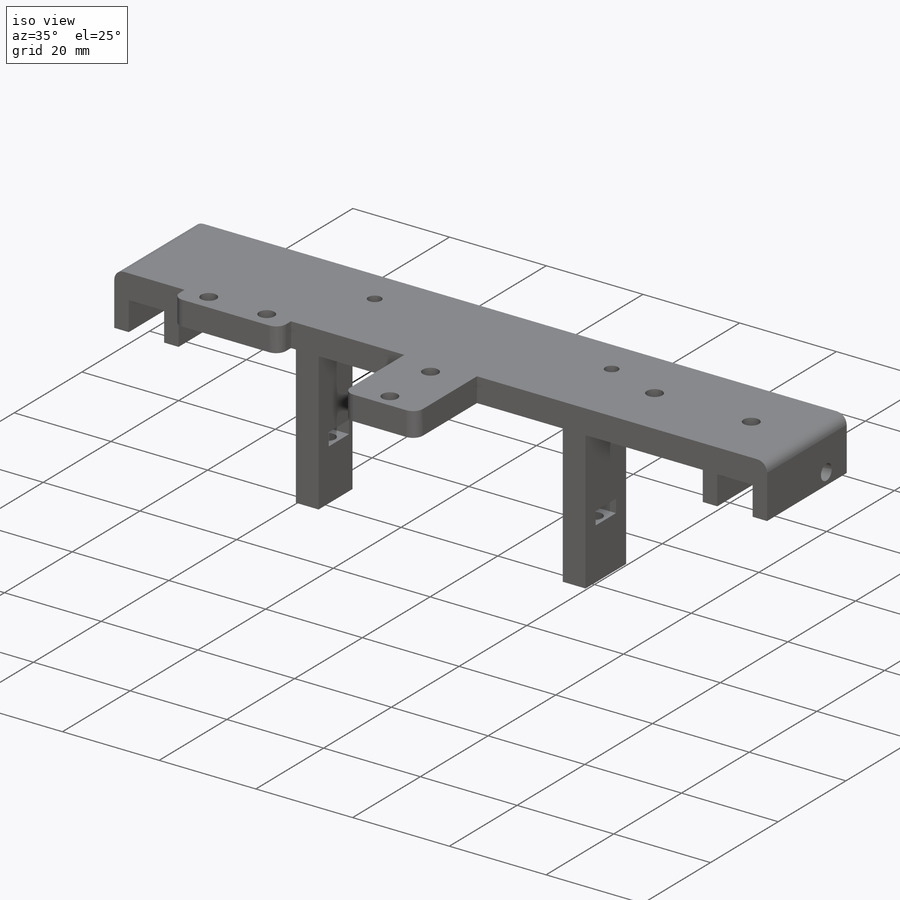
[diagram: iso view]
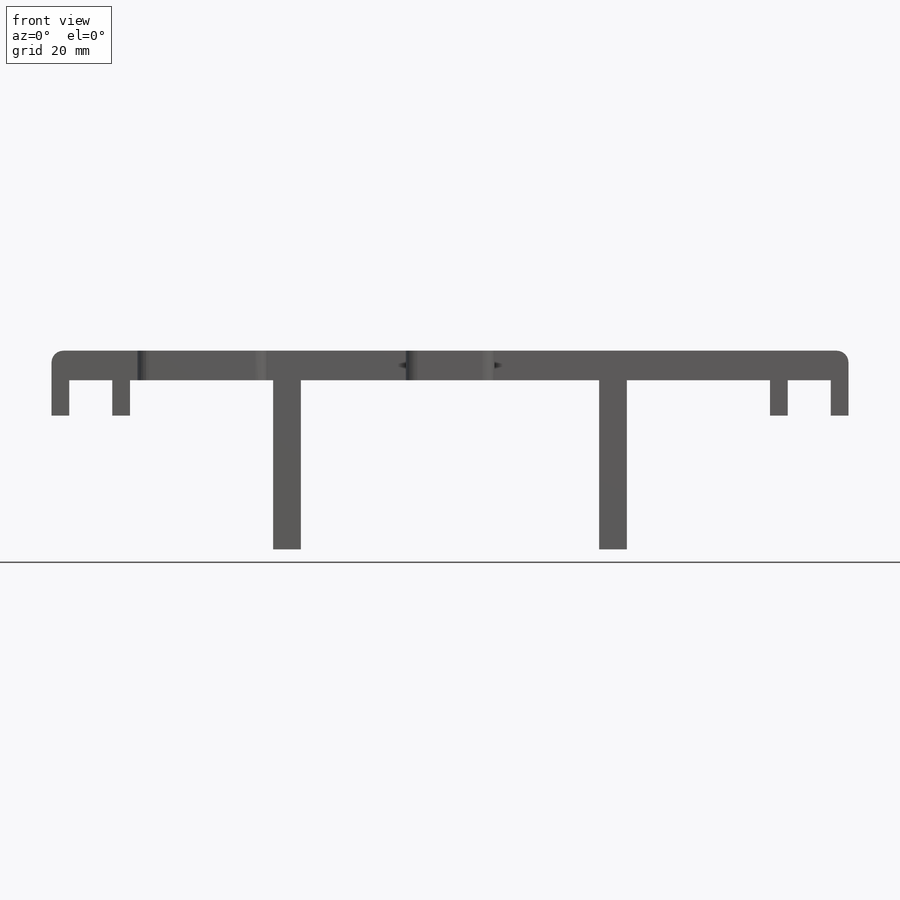
[diagram: front view]
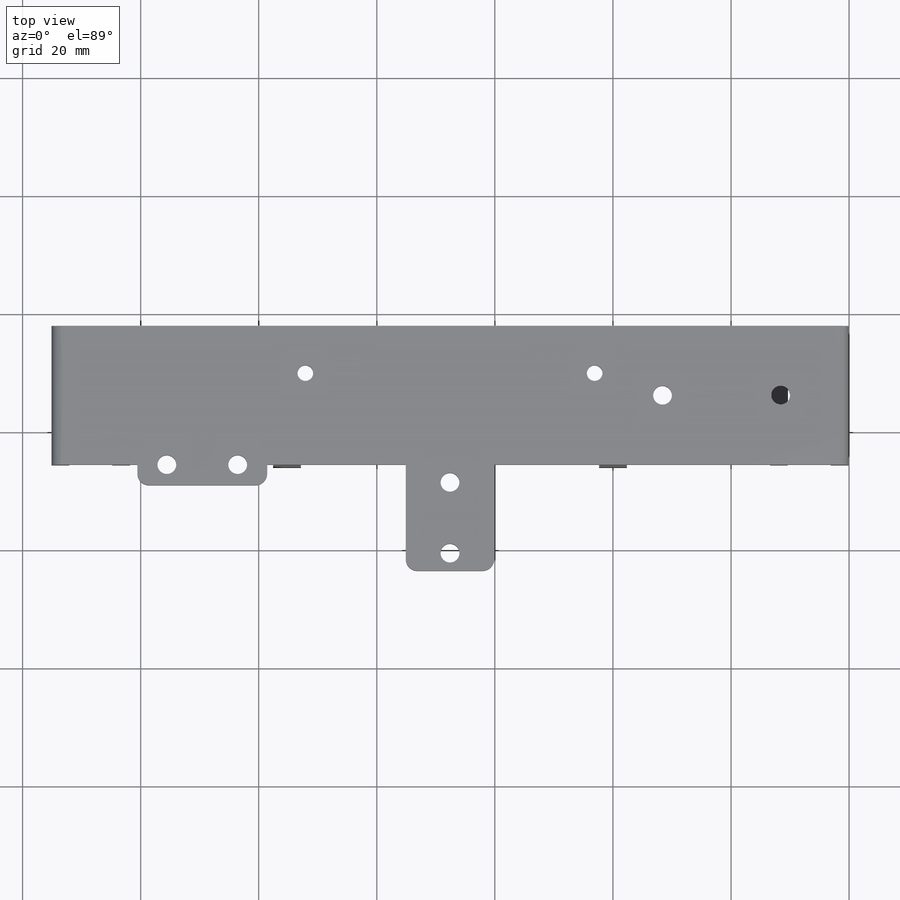
[diagram: top view]
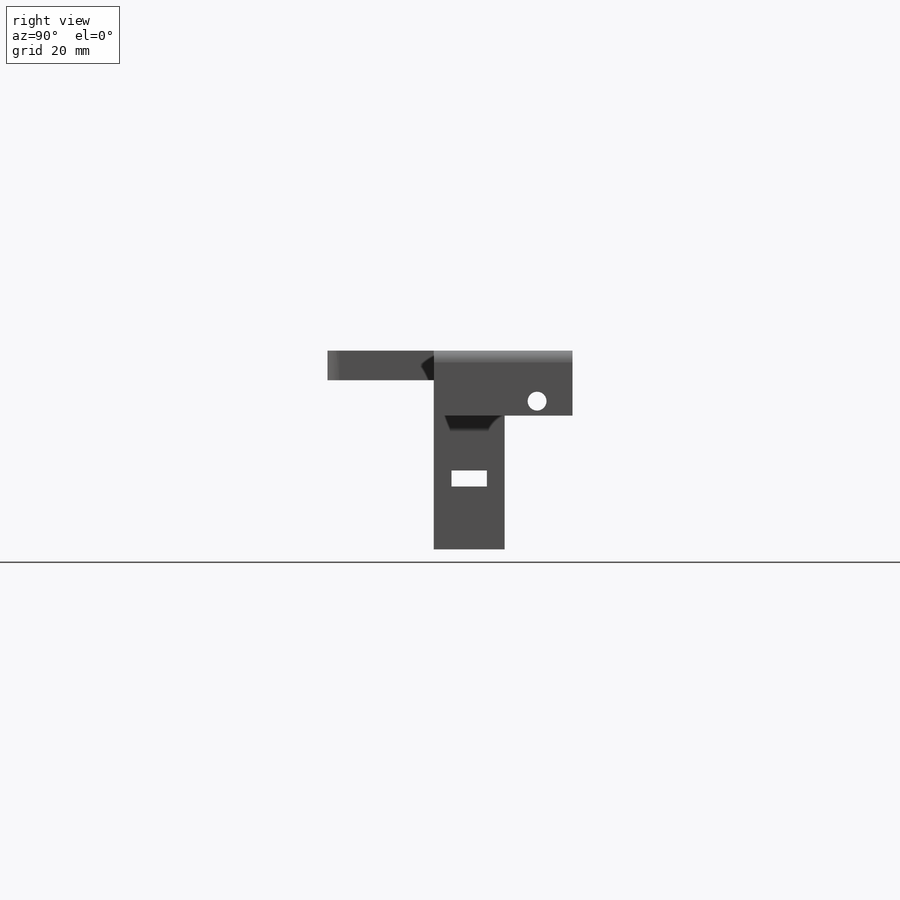
[diagram: right view]
SOLIDWORKS PART (.sldprt)
format: sldprt  version: not decoded by parser v0  size: 421,888 bytes
history: native  units: mm
features: sketch x8, extrude x3, cut_extrude x3, fillet x2, material x1, chamfer x1 (+11 scaffold rows collapsed)
feature tree (29):
  scaffold x11  (default folders/planes/origin — collapsed)
  material  "Material <not specified>"
  sketch  "Sketch1"  dims[c1.D1=3.2mm c1.D8=~2.666667mm c1.D12=3.2mm c1.D13=3.2mm c1.D11=3.2mm c2.D12=3.2mm c2.D2=29.6mm c2.D3=7.3mm c2.D4=20.82mm c2.D5=2.6mm c2.D6=27.6mm c2.D7=67.5mm c3.D4=56.0mm c3.D9=29.0mm c3.D10=24.5mm c3.D11=12.0mm c3.D13=12.0mm c3.D14=9.0mm]
  sketch  "Sketch3"  dims[c1.D7=3.2mm c1.D8=3.2mm c1.D10=3.2mm c1.D1=3.0mm c1.D2=3.0mm c1.D3=6.0mm c1.D4=6.0mm c1.D5=18.0mm c1.D6=15.0mm c1.D9=20.0mm c2.D8=10.0mm c2.D9=6.0mm c2.D11=3.5mm c2.D12=5.0mm]
  extrude  "Boss-Extrude1"  Depth=5mm
  sketch  "Sketch4"  dims[D1=3.0mm D2=3.0mm D3=3.0mm]
  extrude  "Boss-Extrude2"  Depth=6mm
  sketch  "Sketch5"  dims[D1=3.2mm D2=3.55mm]
  cut_extrude  "Cut-Extrude1"  [1 undecoded]
  sketch  "Sketch6"  dims[c1.D1=12.0mm c1.D2=12.0mm c1.D3=12.0mm c2.D2=50.5mm c2.D1=4.0mm]
  extrude  "Boss-Extrude3"  Depth=28.65mm
  sketch  "Sketch8"  dims[D1=6.0mm D2=2.7mm D3=12.0mm]
  cut_extrude  "Cut-Extrude3"  [1 undecoded]
  fillet  "Fillet1"  Radius=2mm
  chamfer  "Chamfer1"  Distance=2mm Angle=45deg
  sketch  "Sketch9"
  cut_extrude  "Cut-Extrude4"  Depth=25mm
  sketch  "Sketch10"  dims[D1=5.7mm D2=5.7mm]
  fillet  "Fillet2"  Radius=2mm
decode coverage: 14 of 17 modeling features carry decoded parameters
note: ~ marks probable driven/reference dimensions
note: 2 parameter values undecoded
note: suppression state not decoded; provenance and decode notes live in map.json
